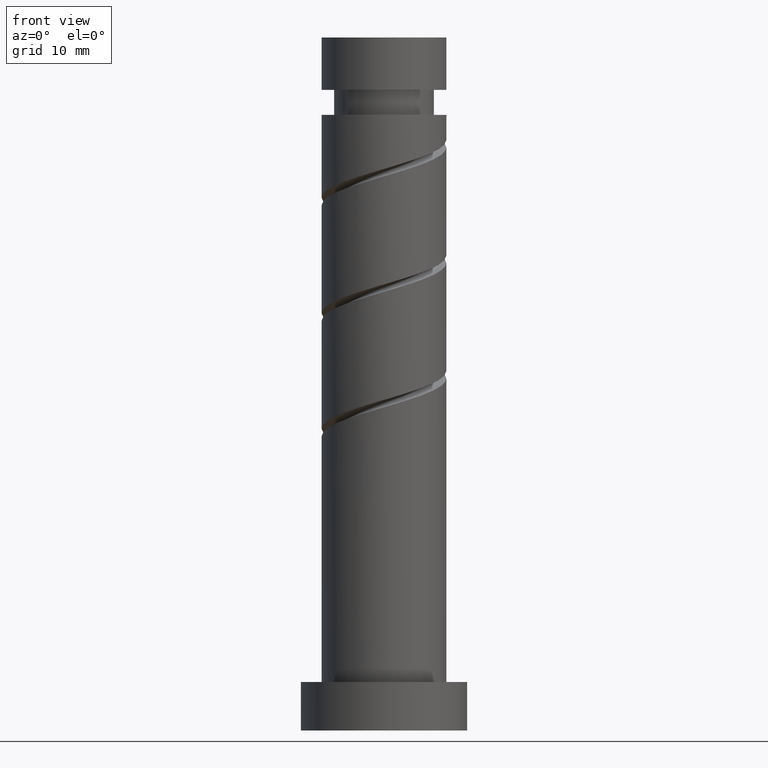
[diagram: clean part render]
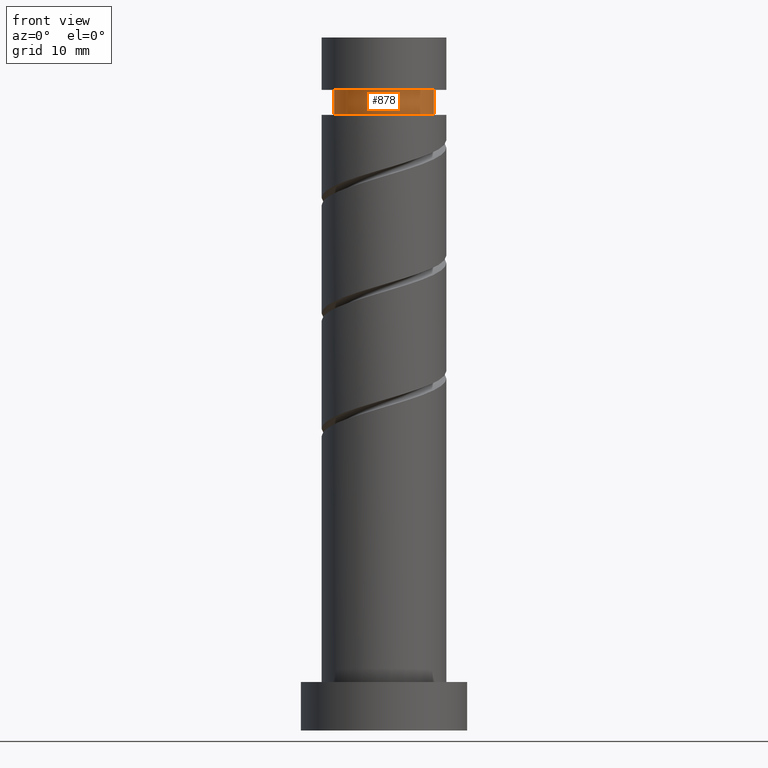
[diagram: same view with one face highlighted and labeled with its STEP entity id]
A machine part, front view. The second image highlights one B-rep face of the part: STEP entity #878.
In plain terms, the highlighted cylindrical surface (partial cylindrical patch) has radius 7.2 mm, axis along (-0, -0, -1).
Its self-contained STEP definition (entity closure, byte-faithful):
#4 = AXIS2_PLACEMENT_3D ( 'NONE', #1398, #911, #470 ) ;
#13 = VERTEX_POINT ( 'NONE', #345 ) ;
#20 = CYLINDRICAL_SURFACE ( 'NONE', #4, 7.200000000000001954 ) ;
#114 = ORIENTED_EDGE ( 'NONE', *, *, #1152, .T. ) ;
#158 = VERTEX_POINT ( 'NONE', #1084 ) ;
#259 = ORIENTED_EDGE ( 'NONE', *, *, #369, .F. ) ;
#261 = DIRECTION ( 'NONE',  ( -0.000000000000000000, -0.000000000000000000, -1.000000000000000000 ) ) ;
#316 = AXIS2_PLACEMENT_3D ( 'NONE', #1240, #1487, #548 ) ;
#345 = CARTESIAN_POINT ( 'NONE',  ( 7.200000000000001954, 8.817456953860946247E-16, 88.84664318135318695 ) ) ;
#366 = ORIENTED_EDGE ( 'NONE', *, *, #1265, .F. ) ;
#369 = EDGE_CURVE ( 'NONE', #13, #1150, #919, .T. ) ;
#397 = LINE ( 'NONE', #861, #892 ) ;
#437 = CARTESIAN_POINT ( 'NONE',  ( -7.200000000000001954, 0.000000000000000000, 92.44664318135319547 ) ) ;
#470 = DIRECTION ( 'NONE',  ( -1.000000000000000000, 0.000000000000000000, 0.000000000000000000 ) ) ;
#477 = FACE_OUTER_BOUND ( 'NONE', #494, .T. ) ;
#494 = EDGE_LOOP ( 'NONE', ( #366, #114, #833, #259 ) ) ;
#521 = EDGE_CURVE ( 'NONE', #1296, #1150, #397, .T. ) ;
#546 = AXIS2_PLACEMENT_3D ( 'NONE', #630, #261, #1080 ) ;
#548 = DIRECTION ( 'NONE',  ( -1.000000000000000000, 0.000000000000000000, 0.000000000000000000 ) ) ;
#630 = CARTESIAN_POINT ( 'NONE',  ( 0.000000000000000000, 0.000000000000000000, 88.84664318135318695 ) ) ;
#786 = DIRECTION ( 'NONE',  ( -0.000000000000000000, -0.000000000000000000, -1.000000000000000000 ) ) ;
#833 = ORIENTED_EDGE ( 'NONE', *, *, #521, .T. ) ;
#861 = CARTESIAN_POINT ( 'NONE',  ( -7.200000000000001954, 0.000000000000000000, 0.000000000000000000 ) ) ;
#878 = ADVANCED_FACE ( 'NONE', ( #477 ), #20, .T. ) ;
#892 = VECTOR ( 'NONE', #1321, 1000.000000000000000 ) ;
#911 = DIRECTION ( 'NONE',  ( -0.000000000000000000, -0.000000000000000000, -1.000000000000000000 ) ) ;
#919 = CIRCLE ( 'NONE', #546, 7.200000000000001954 ) ;
#987 = VECTOR ( 'NONE', #786, 1000.000000000000000 ) ;
#1012 = CIRCLE ( 'NONE', #316, 7.200000000000001954 ) ;
#1080 = DIRECTION ( 'NONE',  ( -1.000000000000000000, 0.000000000000000000, 0.000000000000000000 ) ) ;
#1084 = CARTESIAN_POINT ( 'NONE',  ( 7.200000000000001954, 8.817456953860946247E-16, 92.44664318135319547 ) ) ;
#1134 = CARTESIAN_POINT ( 'NONE',  ( 7.200000000000001954, 8.817456953860946247E-16, 0.000000000000000000 ) ) ;
#1150 = VERTEX_POINT ( 'NONE', #1476 ) ;
#1152 = EDGE_CURVE ( 'NONE', #158, #1296, #1012, .T. ) ;
#1240 = CARTESIAN_POINT ( 'NONE',  ( 0.000000000000000000, 0.000000000000000000, 92.44664318135319547 ) ) ;
#1262 = LINE ( 'NONE', #1134, #987 ) ;
#1265 = EDGE_CURVE ( 'NONE', #158, #13, #1262, .T. ) ;
#1296 = VERTEX_POINT ( 'NONE', #437 ) ;
#1321 = DIRECTION ( 'NONE',  ( -0.000000000000000000, -0.000000000000000000, -1.000000000000000000 ) ) ;
#1398 = CARTESIAN_POINT ( 'NONE',  ( 0.000000000000000000, 0.000000000000000000, 0.000000000000000000 ) ) ;
#1476 = CARTESIAN_POINT ( 'NONE',  ( -7.200000000000001954, 0.000000000000000000, 88.84664318135318695 ) ) ;
#1487 = DIRECTION ( 'NONE',  ( -0.000000000000000000, -0.000000000000000000, -1.000000000000000000 ) ) ;